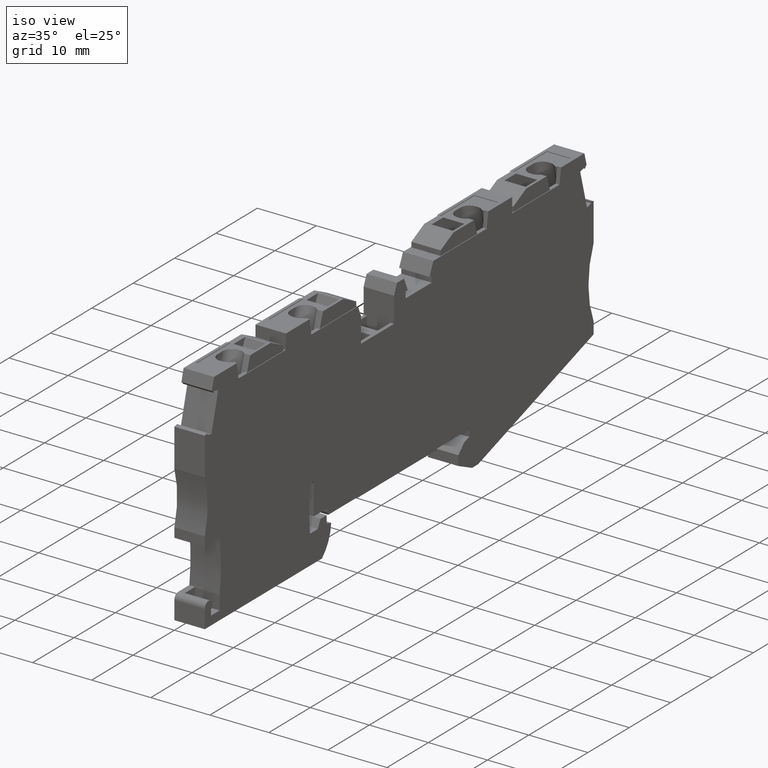
[diagram: clean part render]
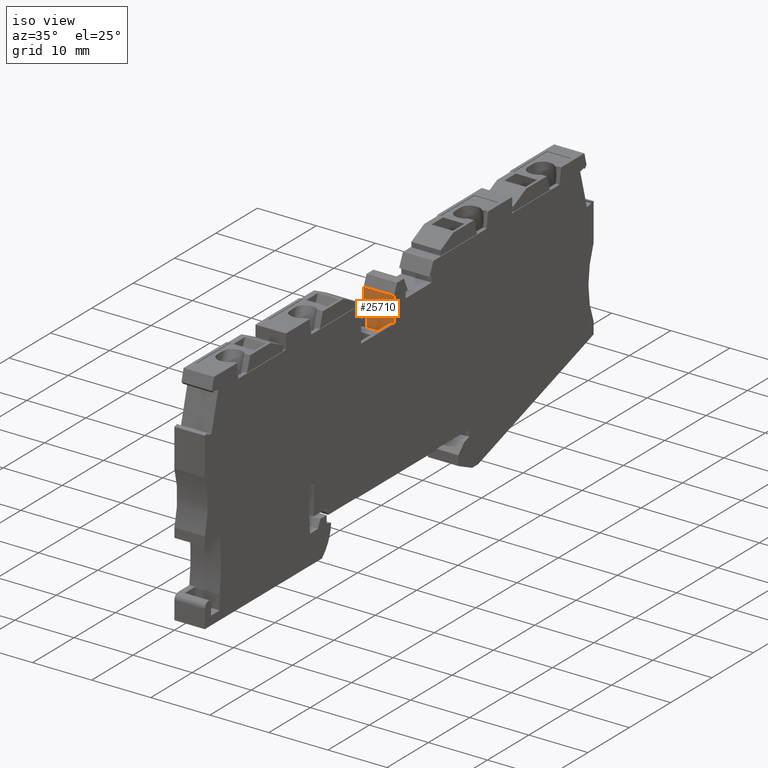
[diagram: same view with one face highlighted and labeled with its STEP entity id]
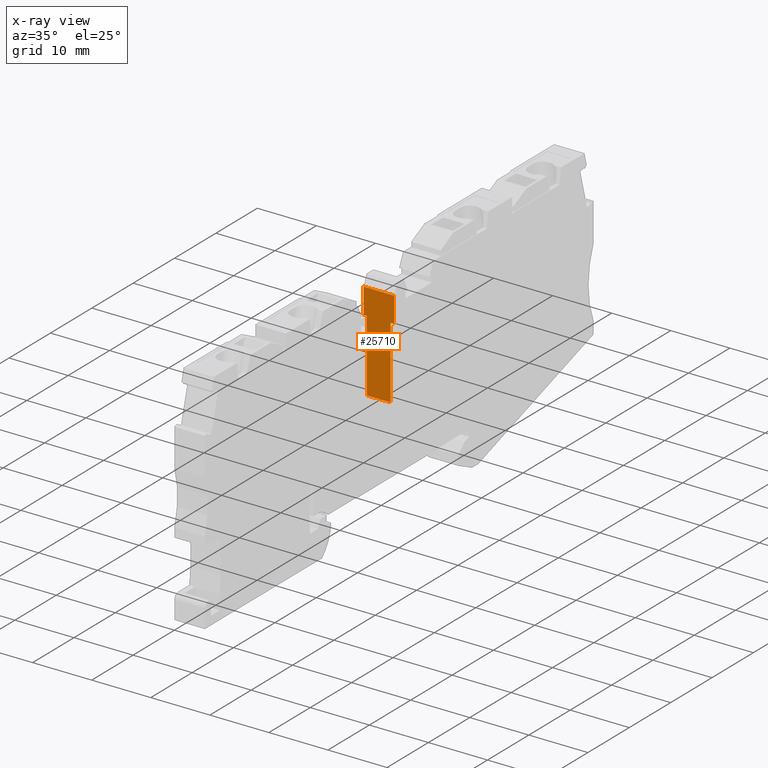
[diagram: x-ray of the same camera — body ghosted, the highlighted face saturated]
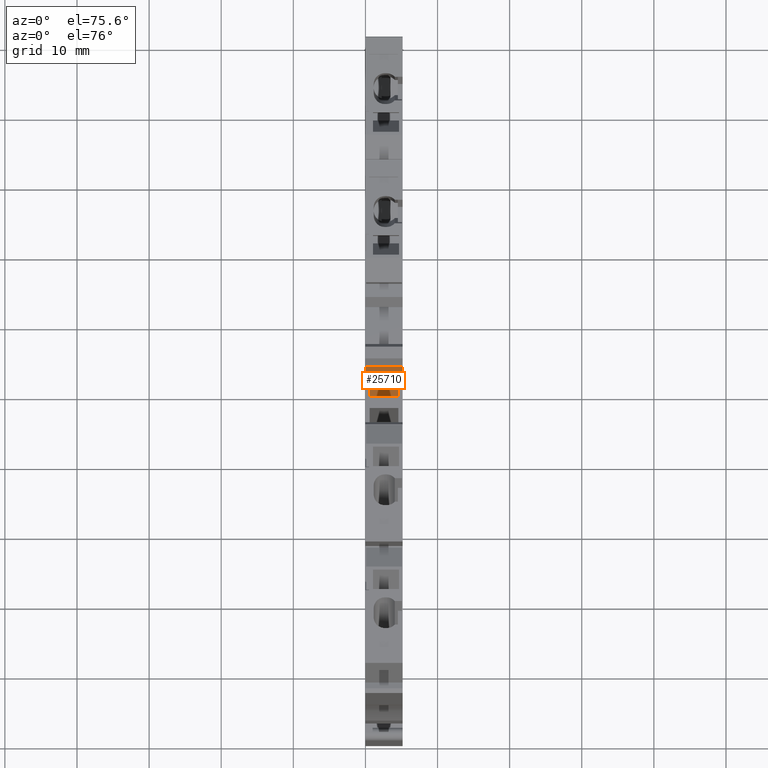
[diagram: same view with one face highlighted and labeled with its STEP entity id]
A machine part, iso view. The second image highlights one B-rep face of the part: STEP entity #25710.
The next image is the same camera in x-ray: the body ghosted, the highlighted face saturated — about 0% of this face is hidden behind the body in this view.
A second angle (auxiliary view) of the same face is appended — the face is thin or edge-on in the first view.
In plain terms, the highlighted planar face has unit normal (0, 1, -0).
Its self-contained STEP definition (entity closure, byte-faithful):
#2450=CARTESIAN_POINT('',(31.5994505786971,31.4677201438811,
-5.15000000005671));
#2460=VERTEX_POINT('',#2450);
#2490=CARTESIAN_POINT('',(35.4632007791786,1.40120309913761E-12,
-5.15000000007031));
#2500=DIRECTION('',(0.121869343405142,-0.992546151641324,
1.25369758141894E-16));
#2510=VECTOR('',#2500,1.);
#2520=LINE('',#2490,#2510);
#2530=CARTESIAN_POINT('',(32.1234887553389,27.1997716918253,
-5.15000000005917));
#2540=VERTEX_POINT('',#2530);
#2550=EDGE_CURVE('',#2460,#2540,#2520,.T.);
#11140=CARTESIAN_POINT('',(32.1234887553388,27.1997716918252,
7.42552783856282E-11));
#11150=VERTEX_POINT('',#11140);
#11180=CARTESIAN_POINT('',(35.4632007791785,1.38616208918197E-12,
-7.030648135363E-11));
#11190=DIRECTION('',(0.121869343405142,-0.992546151641324,
1.25369758141894E-16));
#11200=VECTOR('',#11190,1.);
#11210=LINE('',#11180,#11200);
#11220=CARTESIAN_POINT('',(31.5994505786969,31.4677201438811,
7.40068927843561E-11));
#11230=VERTEX_POINT('',#11220);
#11240=EDGE_CURVE('',#11230,#11150,#11210,.T.);
#25110=CARTESIAN_POINT('',(31.5994505786971,31.4677201438811,
-5.15000000007031));
#25120=DIRECTION('',(-2.48736047506293E-14,-2.91886266429657E-15,1.));
#25130=VECTOR('',#25120,1.);
#25140=LINE('',#25110,#25130);
#25150=EDGE_CURVE('',#2460,#11230,#25140,.T.);
#25270=CARTESIAN_POINT('',(31.5994505786971,31.4677201438811,
-5.15000000007031));
#25280=DIRECTION('',(0.992546151641323,0.121869343405142,
2.5043920549072E-14));
#25290=DIRECTION('',(-0.121869343405142,0.992546151641324,
-1.25369758141894E-16));
#25300=AXIS2_PLACEMENT_3D('',#25270,#25280,#25290);
#25310=PLANE('',#25300);
#25320=CARTESIAN_POINT('',(35.4632007791785,1.39494685260248E-12,
-0.575000000036154));
#25330=DIRECTION('',(-0.121869343405142,0.992546151641323,
-1.26713462326555E-16));
#25340=VECTOR('',#25330,1.);
#25350=LINE('',#25320,#25340);
#25360=CARTESIAN_POINT('',(33.6102947448819,15.0907086417982,
-0.575000000036156));
#25370=VERTEX_POINT('',#25360);
#25380=CARTESIAN_POINT('',(32.1234887553388,27.1997716918252,
-0.575000000036158));
#25390=VERTEX_POINT('',#25380);
#25400=EDGE_CURVE('',#25370,#25390,#25350,.T.);
#25410=ORIENTED_EDGE('',*,*,#25400,.T.);
#25420=CARTESIAN_POINT('',(33.6102947448819,15.0907086417982,
-7.02844270924968E-11));
#25430=DIRECTION('',(-2.51442090527179E-14,-7.1496748318599E-16,1.));
#25440=VECTOR('',#25430,1.);
#25450=LINE('',#25420,#25440);
#25460=CARTESIAN_POINT('',(33.610294744882,15.0907086417982,
-4.57500000003619));
#25470=VERTEX_POINT('',#25460);
#25480=EDGE_CURVE('',#25470,#25370,#25450,.T.);
#25490=ORIENTED_EDGE('',*,*,#25480,.T.);
#25500=CARTESIAN_POINT('',(35.4632007791786,1.4066291904321E-12,
-4.57500000003619));
#25510=DIRECTION('',(-0.121869343405142,0.992546151641323,
-1.26713462326555E-16));
#25520=VECTOR('',#25510,1.);
#25530=LINE('',#25500,#25520);
#25540=CARTESIAN_POINT('',(32.1234887553389,27.1997716918253,
-4.5750000000362));
#25550=VERTEX_POINT('',#25540);
#25560=EDGE_CURVE('',#25470,#25550,#25530,.T.);
#25570=ORIENTED_EDGE('',*,*,#25560,.F.);
#25580=CARTESIAN_POINT('',(32.123488755339,27.1997716918253,
-5.15000000007031));
#25590=DIRECTION('',(-2.48736047506293E-14,-2.91886266429657E-15,1.));
#25600=VECTOR('',#25590,1.);
#25610=LINE('',#25580,#25600);
#25620=EDGE_CURVE('',#2540,#25550,#25610,.T.);
#25630=ORIENTED_EDGE('',*,*,#25620,.T.);
#25640=ORIENTED_EDGE('',*,*,#2550,.T.);
#25650=ORIENTED_EDGE('',*,*,#25150,.F.);
#25660=ORIENTED_EDGE('',*,*,#11240,.F.);
#25670=EDGE_CURVE('',#25390,#11150,#25610,.T.);
#25680=ORIENTED_EDGE('',*,*,#25670,.T.);
#25690=EDGE_LOOP('',(#25680,#25660,#25650,#25640,#25630,#25570,#25490,
#25410));
#25700=FACE_OUTER_BOUND('',#25690,.T.);
#25710=ADVANCED_FACE('',(#25700),#25310,.F.);